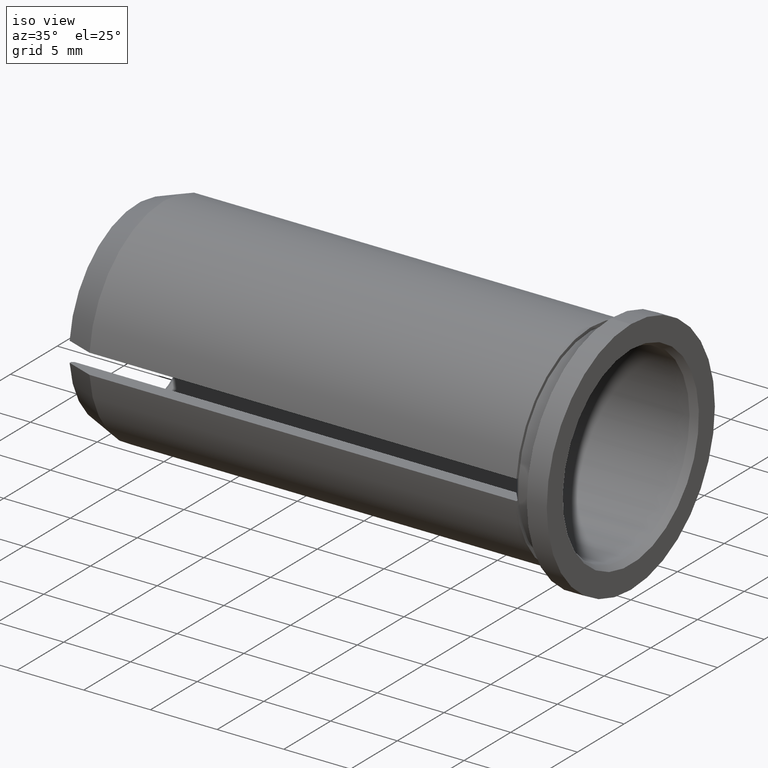
[diagram: clean part render]
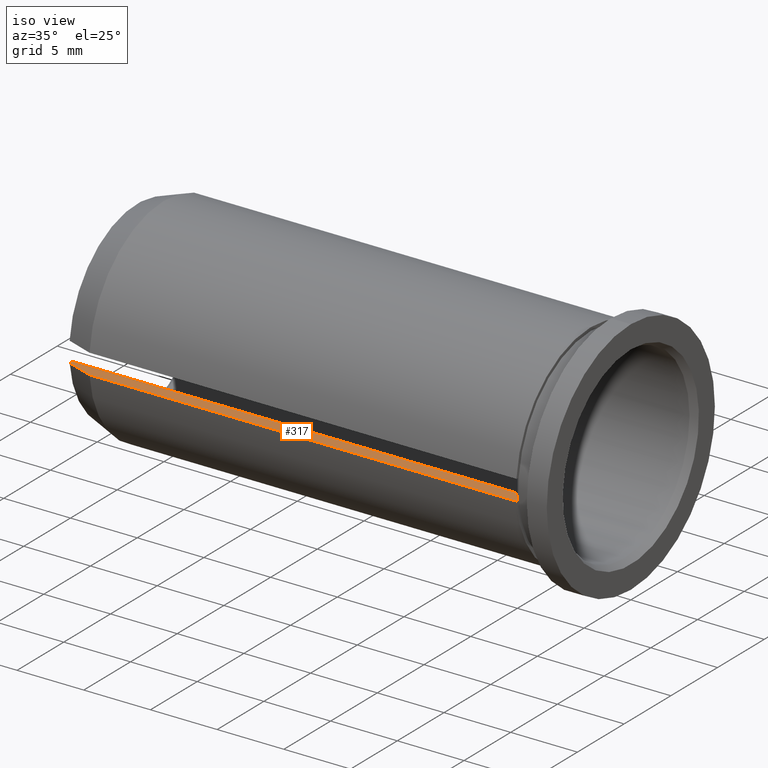
[diagram: same view with one face highlighted and labeled with its STEP entity id]
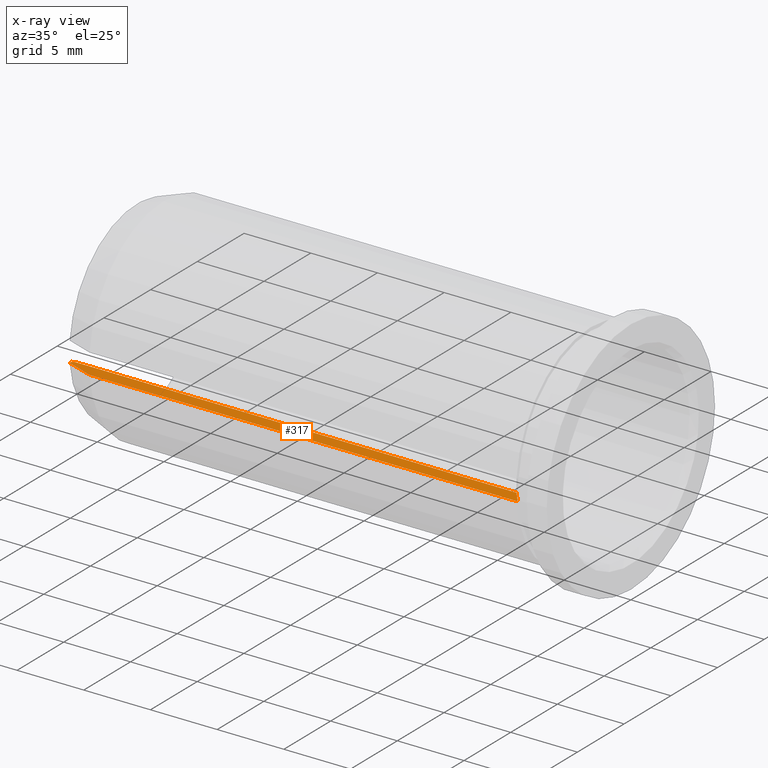
[diagram: x-ray of the same camera — body ghosted, the highlighted face saturated]
A machine part, iso view. The second image highlights one B-rep face of the part: STEP entity #317.
The next image is the same camera in x-ray: the body ghosted, the highlighted face saturated — about 0% of this face is hidden behind the body in this view.
In plain terms, the highlighted planar face has unit normal (-0, 0, -1).
Its self-contained STEP definition (entity closure, byte-faithful):
#15 = VERTEX_POINT ( 'NONE', #203 ) ;
#24 = VECTOR ( 'NONE', #147, 1000.000000000000000 ) ;
#27 = CARTESIAN_POINT ( 'NONE',  ( -3.000000000000000900, 7.750000000000000000, -0.7500000000000000000 ) ) ;
#28 = CARTESIAN_POINT ( 'NONE',  ( -34.99999999999999300, -7.964766161036994400, -0.7500000000000000000 ) ) ;
#31 = DIRECTION ( 'NONE',  ( -1.000000000000000000, 0.0000000000000000000, 0.0000000000000000000 ) ) ;
#40 = VERTEX_POINT ( 'NONE', #174 ) ;
#43 = DIRECTION ( 'NONE',  ( -0.0000000000000000000, 0.0000000000000000000, -1.000000000000000000 ) ) ;
#55 = EDGE_CURVE ( 'NONE', #202, #15, #95, .T. ) ;
#59 = FACE_OUTER_BOUND ( 'NONE', #338, .T. ) ;
#80 = CARTESIAN_POINT ( 'NONE',  ( -38.58775536857143600, -6.959705453537528000, -0.7500000000000000000 ) ) ;
#92 = CARTESIAN_POINT ( 'NONE',  ( -36.79999999999999700, -6.959705453537528000, -0.7500000000000000000 ) ) ;
#95 = LINE ( 'NONE', #118, #24 ) ;
#97 = AXIS2_PLACEMENT_3D ( 'NONE', #258, #43, #257 ) ;
#100 = VERTEX_POINT ( 'NONE', #92 ) ;
#101 = EDGE_CURVE ( 'NONE', #40, #202, #316, .T. ) ;
#106 = LINE ( 'NONE', #183, #307 ) ;
#118 = CARTESIAN_POINT ( 'NONE',  ( -37.00000000000000000, 7.272059531467589500, -0.7500000000000000000 ) ) ;
#127 = DIRECTION ( 'NONE',  ( 0.0000000000000000000, -1.000000000000000000, 0.0000000000000000000 ) ) ;
#137 = CARTESIAN_POINT ( 'NONE',  ( -3.000000000000002700, -7.964766161036996200, -0.7500000000000000000 ) ) ;
#147 = DIRECTION ( 'NONE',  ( 0.0000000000000000000, 1.000000000000000000, 0.0000000000000000000 ) ) ;
#150 = CARTESIAN_POINT ( 'NONE',  ( -37.00000000000000000, -7.233280709968928700, -0.7500000000000000000 ) ) ;
#151 = ORIENTED_EDGE ( 'NONE', *, *, #236, .T. ) ;
#152 = CARTESIAN_POINT ( 'NONE',  ( -37.00000000000000000, -7.233280709968928700, -0.7500000000000000000 ) ) ;
#159 = EDGE_CURVE ( 'NONE', #15, #100, #349, .T. ) ;
#161 = ORIENTED_EDGE ( 'NONE', *, *, #427, .F. ) ;
#167 = CARTESIAN_POINT ( 'NONE',  ( -3.696983839633665600, -6.959705453537527100, -0.7500000000000000000 ) ) ;
#170 = ORIENTED_EDGE ( 'NONE', *, *, #177, .F. ) ;
#174 = CARTESIAN_POINT ( 'NONE',  ( -34.99999999999999300, -7.964766161036994400, -0.7500000000000000000 ) ) ;
#177 = EDGE_CURVE ( 'NONE', #314, #279, #351, .T. ) ;
#183 = CARTESIAN_POINT ( 'NONE',  ( -38.58775536857143600, -7.964766161036994400, -0.7500000000000000000 ) ) ;
#184 = LINE ( 'NONE', #80, #375 ) ;
#191 = PLANE ( 'NONE',  #97 ) ;
#202 = VERTEX_POINT ( 'NONE', #150 ) ;
#203 = CARTESIAN_POINT ( 'NONE',  ( -37.00000000000000000, -7.075833101979178300, -0.7500000000000000000 ) ) ;
#207 = ORIENTED_EDGE ( 'NONE', *, *, #296, .F. ) ;
#210 = CARTESIAN_POINT ( 'NONE',  ( -36.93333177780486700, -7.037126569982963700, -0.7500000000000000000 ) ) ;
#214 = AXIS2_PLACEMENT_3D ( 'NONE', #226, #346, #31 ) ;
#223 = CARTESIAN_POINT ( 'NONE',  ( -3.000000000000002700, -7.836232103263177400, -0.7500000000000000000 ) ) ;
#224 = CIRCLE ( 'NONE', #214, 31.50000000000000700 ) ;
#226 = CARTESIAN_POINT ( 'NONE',  ( -27.99999999999999600, -27.00000000000000000, -0.7500000000000000000 ) ) ;
#236 = EDGE_CURVE ( 'NONE', #314, #303, #224, .T. ) ;
#239 = CARTESIAN_POINT ( 'NONE',  ( -35.66670156923833400, -7.721033178614087300, -0.7500000000000000000 ) ) ;
#257 = DIRECTION ( 'NONE',  ( -1.000000000000000000, 0.0000000000000000000, 0.0000000000000000000 ) ) ;
#258 = CARTESIAN_POINT ( 'NONE',  ( -27.99999999999999600, -27.00000000000000000, -0.7500000000000000000 ) ) ;
#268 = ORIENTED_EDGE ( 'NONE', *, *, #101, .F. ) ;
#275 = CARTESIAN_POINT ( 'NONE',  ( -36.33337186691171900, -7.477214302540265800, -0.7500000000000000000 ) ) ;
#279 = VERTEX_POINT ( 'NONE', #137 ) ;
#280 = CARTESIAN_POINT ( 'NONE',  ( -36.86666508525750900, -6.998417398494318300, -0.7500000000000000000 ) ) ;
#296 = EDGE_CURVE ( 'NONE', #279, #40, #106, .T. ) ;
#303 = VERTEX_POINT ( 'NONE', #167 ) ;
#307 = VECTOR ( 'NONE', #391, 1000.000000000000000 ) ;
#314 = VERTEX_POINT ( 'NONE', #223 ) ;
#316 = B_SPLINE_CURVE_WITH_KNOTS ( 'NONE', 3,
 ( #28, #239, #275, #152 ),
 .UNSPECIFIED., .F., .F.,
 ( 4, 4 ),
 ( 0.009711911398750116400, 0.01184148182100318500 ),
 .UNSPECIFIED. ) ;
#317 = ADVANCED_FACE ( 'NONE', ( #59 ), #191, .F. ) ;
#338 = EDGE_LOOP ( 'NONE', ( #352, #360, #268, #207, #170, #151, #161 ) ) ;
#341 = CARTESIAN_POINT ( 'NONE',  ( -37.00000000000000000, -7.075833101979178300, -0.7500000000000000000 ) ) ;
#344 = CARTESIAN_POINT ( 'NONE',  ( -36.79999999999999700, -6.959705453537528000, -0.7500000000000000000 ) ) ;
#346 = DIRECTION ( 'NONE',  ( 0.0000000000000000000, 0.0000000000000000000, 1.000000000000000000 ) ) ;
#349 = B_SPLINE_CURVE_WITH_KNOTS ( 'NONE', 3,
 ( #341, #210, #280, #344 ),
 .UNSPECIFIED., .F., .F.,
 ( 4, 4 ),
 ( 0.008159521160765015300, 0.008390790686471119900 ),
 .UNSPECIFIED. ) ;
#351 = LINE ( 'NONE', #27, #358 ) ;
#352 = ORIENTED_EDGE ( 'NONE', *, *, #159, .F. ) ;
#358 = VECTOR ( 'NONE', #127, 1000.000000000000000 ) ;
#360 = ORIENTED_EDGE ( 'NONE', *, *, #55, .F. ) ;
#375 = VECTOR ( 'NONE', #397, 1000.000000000000000 ) ;
#391 = DIRECTION ( 'NONE',  ( -1.000000000000000000, -0.0000000000000000000, -0.0000000000000000000 ) ) ;
#397 = DIRECTION ( 'NONE',  ( 1.000000000000000000, 0.0000000000000000000, 0.0000000000000000000 ) ) ;
#427 = EDGE_CURVE ( 'NONE', #100, #303, #184, .T. ) ;